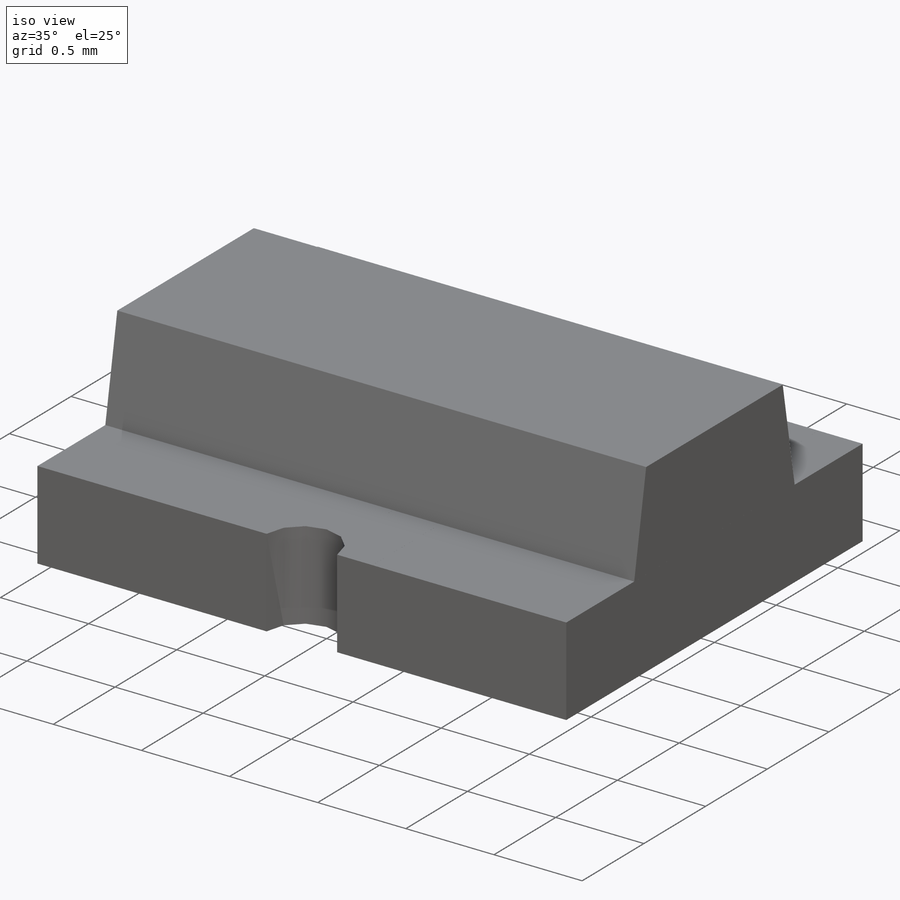
[diagram: iso view]
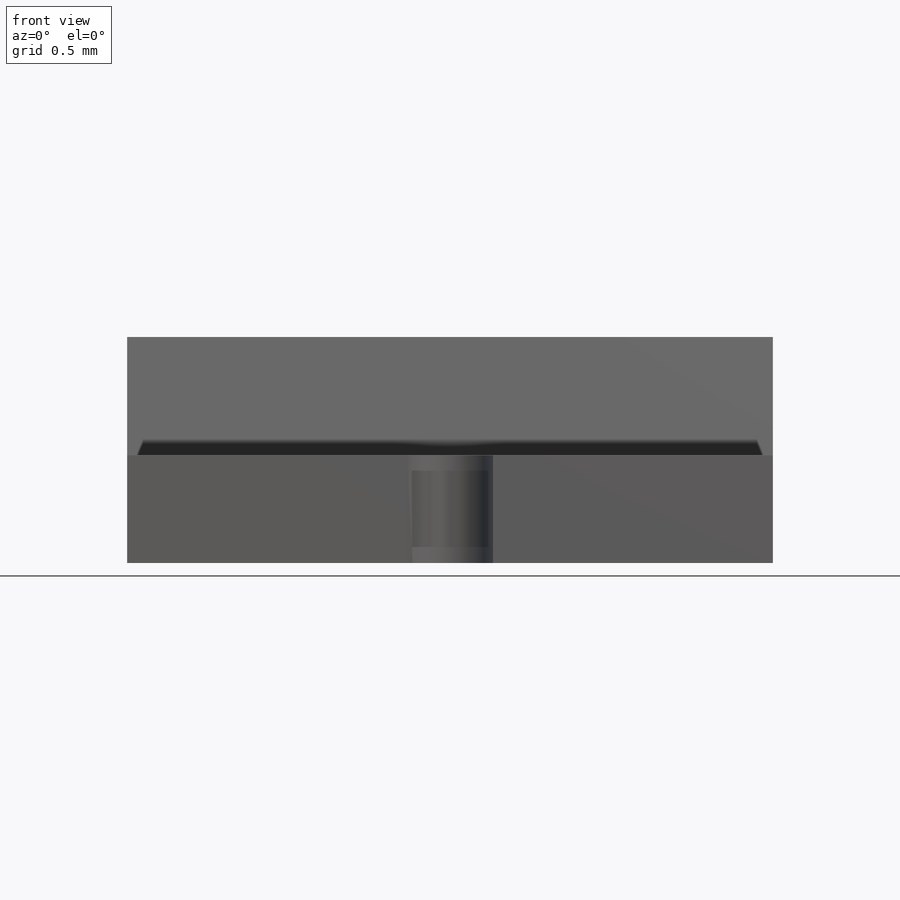
[diagram: front view]
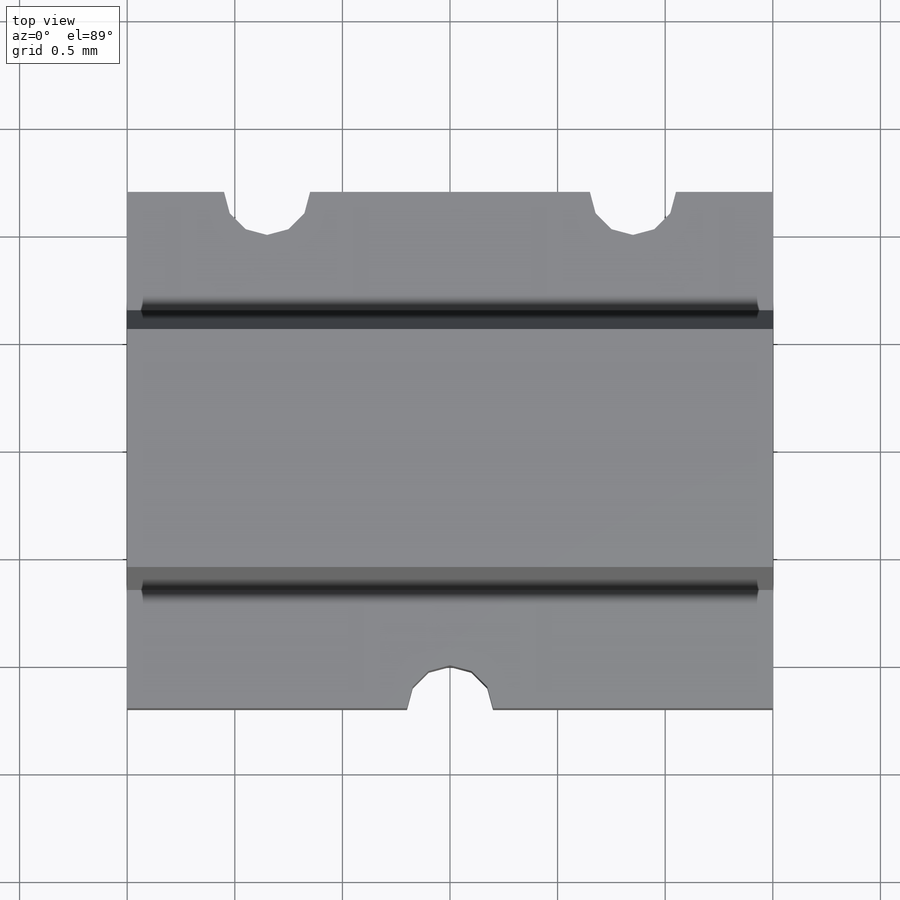
[diagram: top view]
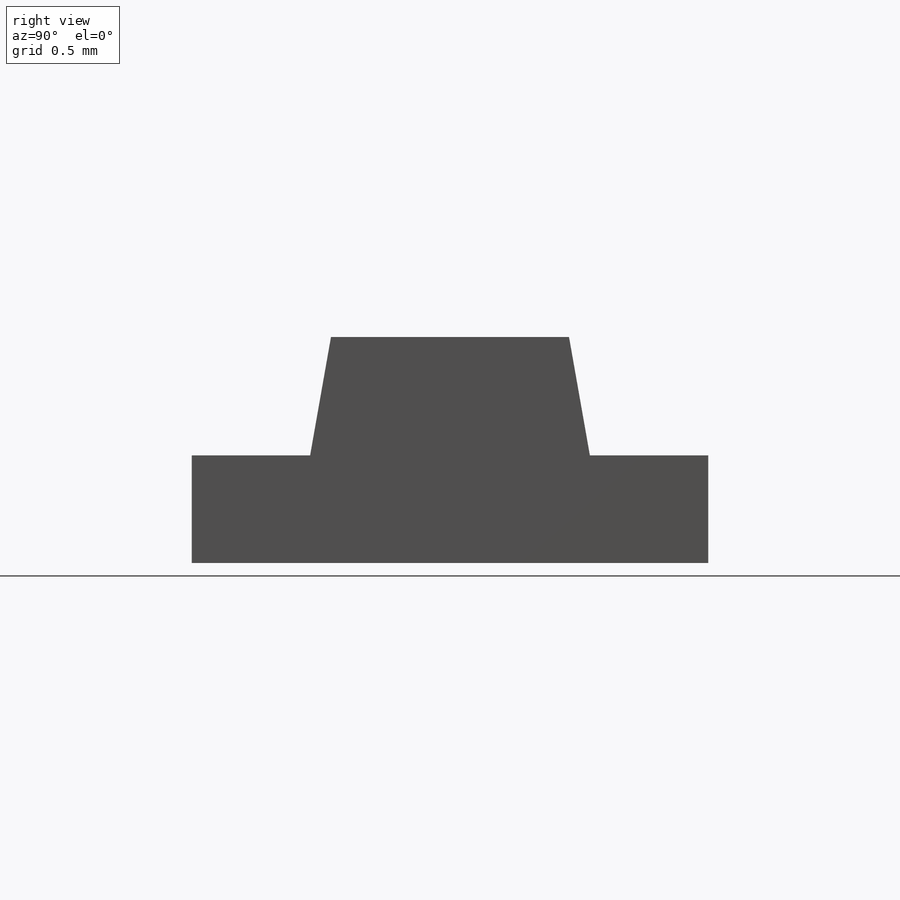
[diagram: right view]
SOLIDWORKS PART (.sldprt)
format: sldprt  version: not decoded by parser v0  size: 738,304 bytes
history: native  units: mm
features: sketch x6, extrude x4, cut_extrude x2, material x1 (+12 scaffold rows collapsed)
feature tree (25):
  scaffold x12  (default folders/planes/origin — collapsed)
  material  "Material <not specified>"
  sketch  "Sketch1"  dims[c1.D1=0.5mm c1.D2=2.4mm c1.D3=1.3mm c1.D4=~1.292775mm c2.D4=~168.853426deg c3.D4=~1.317631mm c4.D4=~101.146574deg c5.D4=~1.292775mm c6.D4=~168.853426deg c7.D4=~1.317631mm c8.D4=~168.853426deg c9.D4=1.05mm c9.D5=~0.606122mm c10.D5=10.0deg]
  extrude  "Extrude1"  Depth=3mm
  extrude  "Extrude2"  [1 undecoded]
  sketch  "Sketch1<3>"  dims[D1=3.0mm]
  sketch  "Sketch2"  dims[D3=0.4mm D1=0.8mm D2=0.5mm D4=1.7mm D5=2.5mm]
  cut_extrude  "Cut-Extrude1"  [1 undecoded]
  extrude  "Extrude3"  [1 undecoded]
  sketch  "Sketch2<3>"  dims[D1=0.003mm D2=0.0001mm]
  sketch  "Sketch3"
  extrude  "Extrude4"  Depth=0.003mm
  sketch  "Sketch4"
  cut_extrude  "Cut-Extrude2"  Depth=0.01mm
decode coverage: 7 of 12 modeling features carry decoded parameters
note: ~ marks probable driven/reference dimensions
note: 3 parameter values undecoded
summary: no parameter record found for 3 features
note: suppression state not decoded; provenance and decode notes live in map.json
